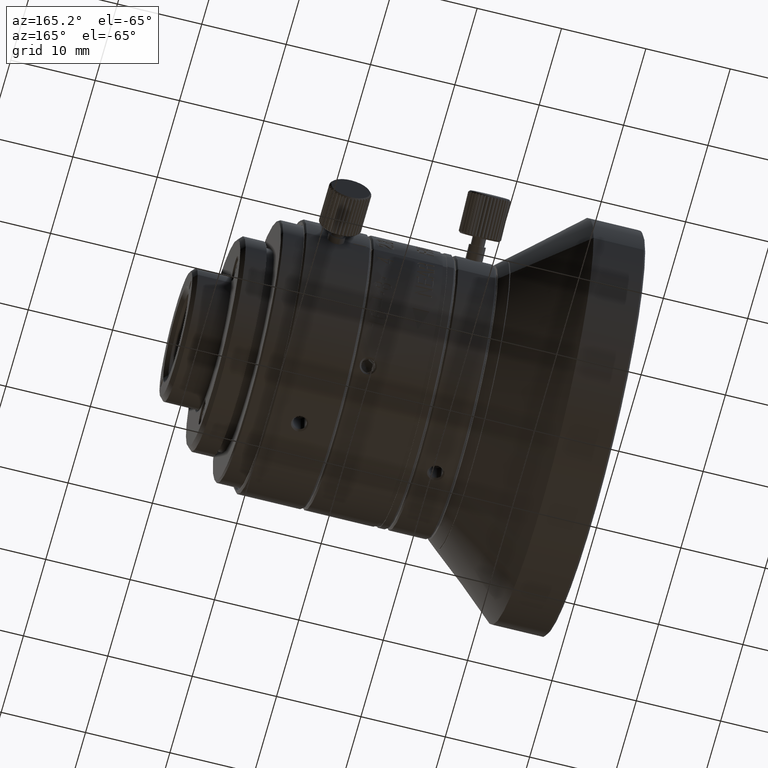
[diagram: clean part render]
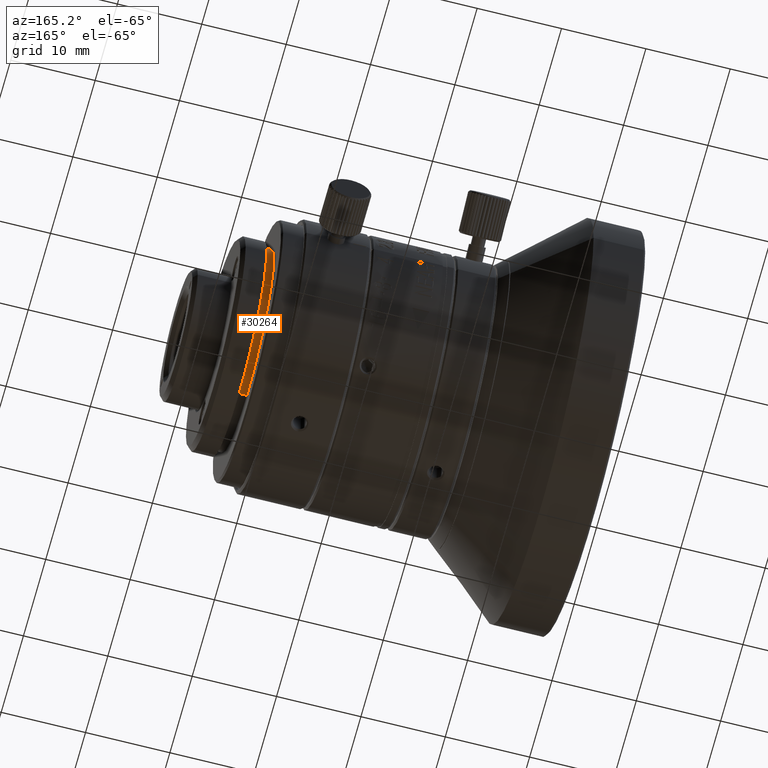
[diagram: same view with one face highlighted and labeled with its STEP entity id]
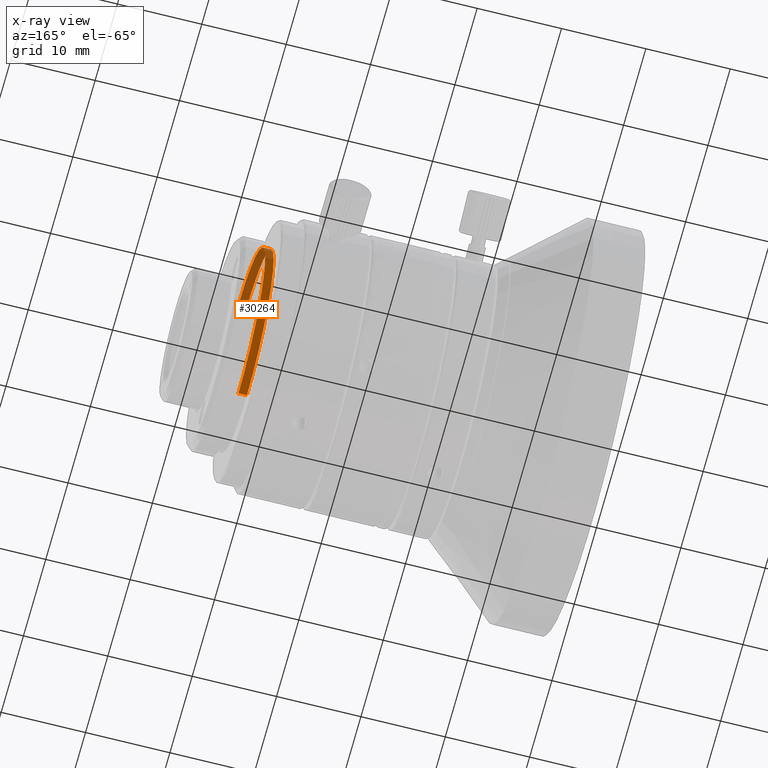
[diagram: x-ray of the same camera — body ghosted, the highlighted face saturated]
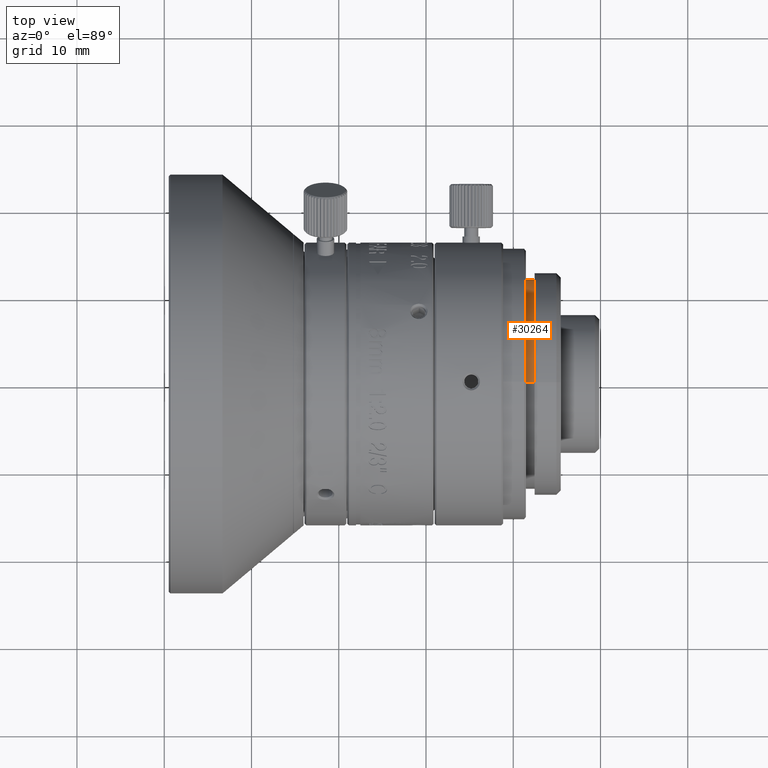
[diagram: same view with one face highlighted and labeled with its STEP entity id]
A machine part, auxiliary view. The second image highlights one B-rep face of the part: STEP entity #30264.
The next image is the same camera in x-ray: the body ghosted, the highlighted face saturated — about 27% of this face is hidden behind the body in this view.
A second angle (top view) of the same face is appended — the face is thin or edge-on in the first view.
In plain terms, the highlighted cylindrical surface (partial cylindrical patch) has radius 12 mm, axis along (1, 0, 0).
Its self-contained STEP definition (entity closure, byte-faithful):
#2489 = CARTESIAN_POINT ( 'NONE',  ( 21.94276785900999727, 3.037570195374000164E-13, 0.000000000000000000 ) ) ;
#3836 = CARTESIAN_POINT ( 'NONE',  ( 21.44276785901000082, 0.000000000000000000, -12.00000000000000000 ) ) ;
#6481 = CARTESIAN_POINT ( 'NONE',  ( 22.44276785900999727, 0.000000000000000000, 12.00000000000000000 ) ) ;
#9736 = DIRECTION ( 'NONE',  ( 0.000000000000000000, -2.531308496145000031E-14, 1.000000000000000000 ) ) ;
#11461 = VERTEX_POINT ( 'NONE', #71808 ) ;
#16522 = EDGE_LOOP ( 'NONE', ( #45658, #29332, #28888, #17953 ) ) ;
#16525 = DIRECTION ( 'NONE',  ( 0.000000000000000000, -2.531308496145000031E-14, -1.000000000000000000 ) ) ;
#17732 = EDGE_CURVE ( 'NONE', #92700, #68930, #43467, .T. ) ;
#17953 = ORIENTED_EDGE ( 'NONE', *, *, #59659, .F. ) ;
#18524 = DIRECTION ( 'NONE',  ( 1.000000000000000000, 0.000000000000000000, 0.000000000000000000 ) ) ;
#28888 = ORIENTED_EDGE ( 'NONE', *, *, #32220, .F. ) ;
#29332 = ORIENTED_EDGE ( 'NONE', *, *, #87246, .F. ) ;
#30264 = ADVANCED_FACE ( 'NONE', ( #85729 ), #91619, .T. ) ;
#32220 = EDGE_CURVE ( 'NONE', #11461, #67452, #68733, .T. ) ;
#39374 = CARTESIAN_POINT ( 'NONE',  ( 22.44276785900999727, 3.037570195374000164E-13, 0.000000000000000000 ) ) ;
#43467 = LINE ( 'NONE', #6481, #50256 ) ;
#45658 = ORIENTED_EDGE ( 'NONE', *, *, #17732, .F. ) ;
#47927 = AXIS2_PLACEMENT_3D ( 'NONE', #2489, #18524, #92587 ) ;
#48836 = AXIS2_PLACEMENT_3D ( 'NONE', #61332, #76428, #9736 ) ;
#50256 = VECTOR ( 'NONE', #50300, 1000.000000000000000 ) ;
#50300 = DIRECTION ( 'NONE',  ( -1.000000000000000000, 0.000000000000000000, 0.000000000000000000 ) ) ;
#51190 = CIRCLE ( 'NONE', #76095, 12.00000000000000000 ) ;
#52341 = CARTESIAN_POINT ( 'NONE',  ( 22.44276785900999727, 0.000000000000000000, -12.00000000000000000 ) ) ;
#59656 = CARTESIAN_POINT ( 'NONE',  ( 22.44276785900999727, 0.000000000000000000, 12.00000000000000000 ) ) ;
#59659 = EDGE_CURVE ( 'NONE', #68930, #11461, #78383, .T. ) ;
#61332 = CARTESIAN_POINT ( 'NONE',  ( 21.44276785901000082, 3.037570195374000164E-13, 0.000000000000000000 ) ) ;
#63696 = DIRECTION ( 'NONE',  ( 1.000000000000000000, 0.000000000000000000, 0.000000000000000000 ) ) ;
#67452 = VERTEX_POINT ( 'NONE', #52341 ) ;
#68733 = LINE ( 'NONE', #3836, #80746 ) ;
#68930 = VERTEX_POINT ( 'NONE', #81135 ) ;
#71808 = CARTESIAN_POINT ( 'NONE',  ( 21.44276785901000082, 0.000000000000000000, -12.00000000000000000 ) ) ;
#76095 = AXIS2_PLACEMENT_3D ( 'NONE', #39374, #84212, #16525 ) ;
#76428 = DIRECTION ( 'NONE',  ( -1.000000000000000000, 0.000000000000000000, 0.000000000000000000 ) ) ;
#78383 = CIRCLE ( 'NONE', #48836, 12.00000000000000000 ) ;
#80746 = VECTOR ( 'NONE', #63696, 1000.000000000000000 ) ;
#81135 = CARTESIAN_POINT ( 'NONE',  ( 21.44276785901000082, 0.000000000000000000, 12.00000000000000000 ) ) ;
#84212 = DIRECTION ( 'NONE',  ( 1.000000000000000000, 0.000000000000000000, 0.000000000000000000 ) ) ;
#85729 = FACE_OUTER_BOUND ( 'NONE', #16522, .T. ) ;
#87246 = EDGE_CURVE ( 'NONE', #67452, #92700, #51190, .T. ) ;
#91619 = CYLINDRICAL_SURFACE ( 'NONE', #47927, 12.00000000000000000 ) ;
#92587 = DIRECTION ( 'NONE',  ( 0.000000000000000000, -2.531308496145000031E-14, -1.000000000000000000 ) ) ;
#92700 = VERTEX_POINT ( 'NONE', #59656 ) ;